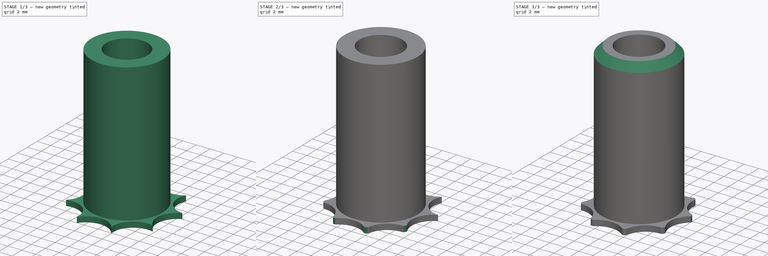
[diagram: build sequence overview — one tinted view per stage of 3, left to right]
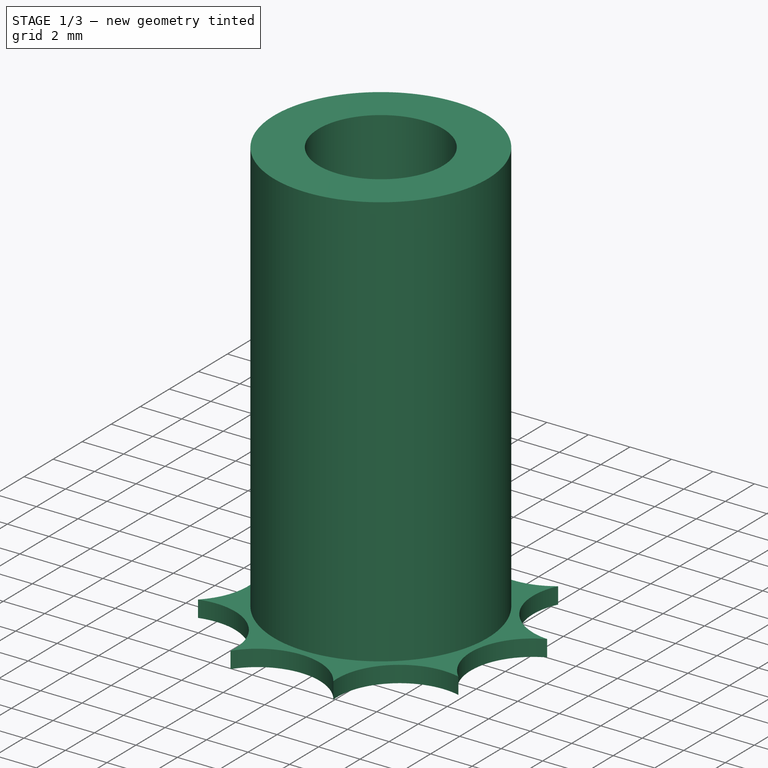
[diagram: stage 1 of 3 — iso view after this stage's code; geometry added in this stage tinted green]
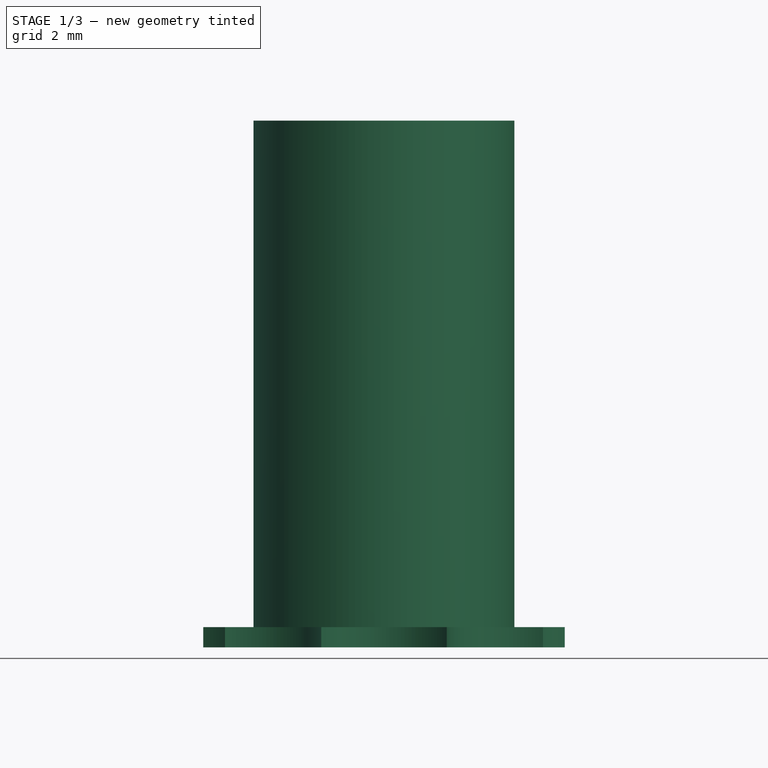
[diagram: stage 1 of 3 — front view after this stage's code; geometry added in this stage tinted green]
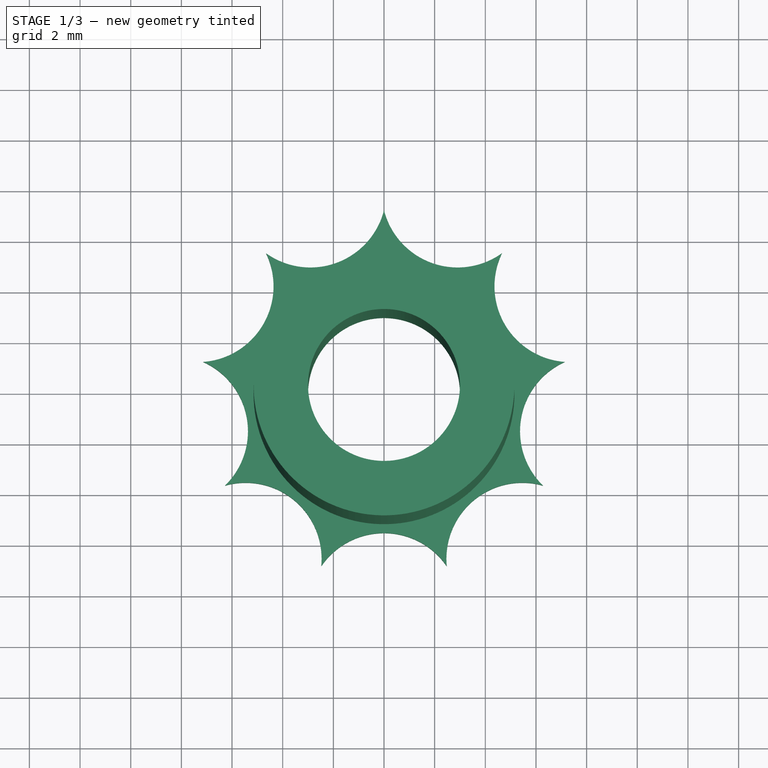
[diagram: stage 1 of 3 — top view after this stage's code; geometry added in this stage tinted green]
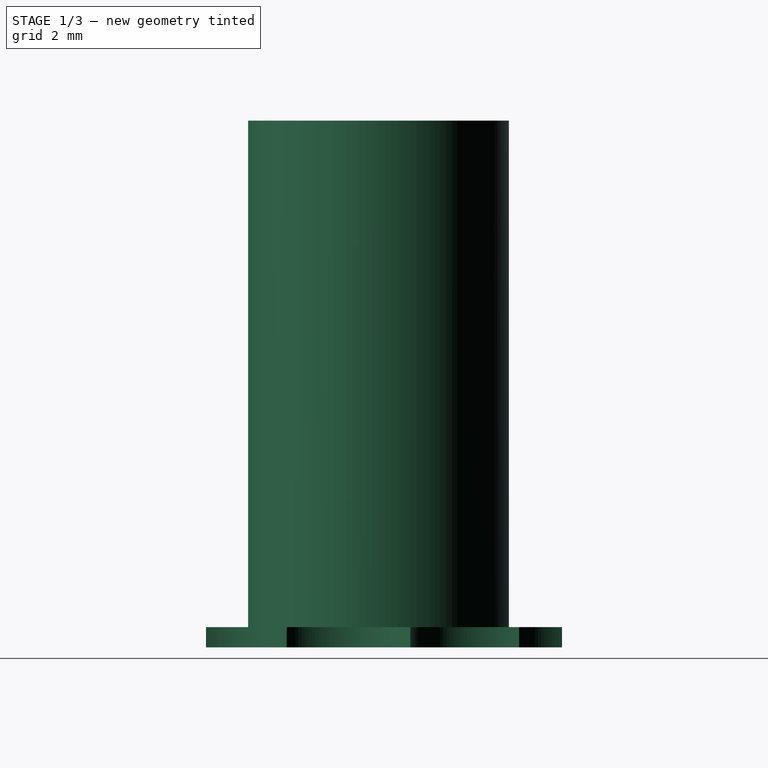
[diagram: stage 1 of 3 — right view after this stage's code; geometry added in this stage tinted green]
FCSTD DOCUMENT  (FreeCAD 0.19R24276 (Git))
Label: b_fix
License: All rights reserved
LicenseURL: http://en.wikipedia.org/wiki/All_rights_reserved
objects: PartDesign::Fillet×3, Sketcher::SketchObject×2, PartDesign::Pad×2, PartDesign::Chamfer×1, PartDesign::Body×1
note: 15 computed .brp shape members not serialized (recipe doc carries the construction recipe); baked Part::Feature solids carry a one-line shape summary decoded from their .brp

FEATURE [Sketcher::SketchObject] Sketch
  FullyConstrained = true
  MapMode = 5
  Support = -> [XY_Plane]
  sketch-geometry (2):
    g0: Circle CenterX=0 CenterY=0 CenterZ=0 NormalX=0 NormalY=0 NormalZ=1 AngleXU=0 Radius=5.15
    g1: Circle CenterX=0 CenterY=0 CenterZ=0 NormalX=0 NormalY=0 NormalZ=1 AngleXU=0 Radius=3
  constraints (4):
    c: Coincident(g0,g-1)
    c: Diameter(g0) = 10.3
    c: Coincident(g1,g0)
    c: Diameter(g1) = 6
FEATURE [PartDesign::Pad] Pad
  Direction = (1,1,1)
  Length = 20
  Length2 = 100
  Profile = -> Sketch
  Type = 0
FEATURE [Sketcher::SketchObject] Sketch001
  FullyConstrained = true
  MapMode = 5
  Placement = pos=(0,0,0) rot=(1,0,0;3.14159rad)
  Support = -> [Pad]
  sketch-geometry (31):
    g0: LineSegment StartX=0 StartY=8.5 StartZ=0 EndX=-5.46369 EndY=6.51138 EndZ=0
    g1: LineSegment StartX=-5.46369 StartY=6.51138 StartZ=0 EndX=-8.37087 EndY=1.47601 EndZ=0
    g2: LineSegment StartX=-8.37087 StartY=1.47601 StartZ=0 EndX=-7.36122 EndY=-4.25 EndZ=0
    g3: LineSegment StartX=-7.36122 StartY=-4.25 StartZ=0 EndX=-2.90717 EndY=-7.98739 EndZ=0
    g4: LineSegment StartX=-2.90717 StartY=-7.98739 StartZ=0 EndX=2.90717 EndY=-7.98739 EndZ=0
    g5: LineSegment StartX=2.90717 StartY=-7.98739 StartZ=0 EndX=7.36122 EndY=-4.25 EndZ=0
    g6: LineSegment StartX=7.36122 StartY=-4.25 StartZ=0 EndX=8.37087 EndY=1.47601 EndZ=0
    g7: LineSegment StartX=8.37087 StartY=1.47601 StartZ=0 EndX=5.46369 EndY=6.51138 EndZ=0
    g8: LineSegment StartX=5.46369 StartY=6.51138 StartZ=0 EndX=0 EndY=8.5 EndZ=0
    g9: Circle CenterX=0 CenterY=0 CenterZ=0 NormalX=0 NormalY=0 NormalZ=1 AngleXU=0 Radius=8.5
    g10: Circle CenterX=0 CenterY=0 CenterZ=0 NormalX=0 NormalY=0 NormalZ=1 AngleXU=0 Radius=3
    g11: LineSegment StartX=5.46369 StartY=6.51138 StartZ=0 EndX=-9e-16 EndY=0 EndZ=0
    g12: Circle CenterX=0 CenterY=0 CenterZ=0 NormalX=0 NormalY=0 NormalZ=1 AngleXU=0 Radius=11.5
    g13: ArcOfCircle CenterX=0 CenterY=8.5 CenterZ=0 NormalX=0 NormalY=0 NormalZ=1 AngleXU=0 Radius=3 StartAngle=5.93412 EndAngle=9.77384
    g14: ArcOfCircle CenterX=5.46369 CenterY=6.51138 CenterZ=0 NormalX=0 NormalY=0 NormalZ=1 AngleXU=0 Radius=3 StartAngle=3.04194 EndAngle=4.98657
    g15: ArcOfCircle CenterX=8.37087 CenterY=1.47601 CenterZ=0 NormalX=0 NormalY=0 NormalZ=1 AngleXU=0 Radius=3 StartAngle=2.34381 EndAngle=4.28844
    g16: ArcOfCircle CenterX=7.36122 CenterY=-4.25 CenterZ=0 NormalX=0 NormalY=0 NormalZ=1 AngleXU=0 Radius=3 StartAngle=1.64568 EndAngle=3.59031
    g17: ArcOfCircle CenterX=2.90717 CenterY=-7.98739 CenterZ=0 NormalX=0 NormalY=0 NormalZ=1 AngleXU=0 Radius=3 StartAngle=0.947546 EndAngle=2.89218
    g18: ArcOfCircle CenterX=-2.90717 CenterY=-7.98739 CenterZ=0 NormalX=0 NormalY=0 NormalZ=1 AngleXU=0 Radius=3 StartAngle=0.249415 EndAngle=2.19405
    g19: ArcOfCircle CenterX=-7.36122 CenterY=-4.25 CenterZ=0 NormalX=0 NormalY=0 NormalZ=1 AngleXU=0 Radius=3 StartAngle=5.83447 EndAngle=7.7791
    g20: ArcOfCircle CenterX=-8.37087 CenterY=1.47601 CenterZ=0 NormalX=0 NormalY=0 NormalZ=1 AngleXU=0 Radius=3 StartAngle=5.13634 EndAngle=7.08097
    g21: ArcOfCircle CenterX=-5.46369 CenterY=6.51138 CenterZ=0 NormalX=0 NormalY=0 NormalZ=1 AngleXU=0 Radius=3 StartAngle=4.4382 EndAngle=6.38284
    g22: ArcOfCircle CenterX=5.46369 CenterY=6.51138 CenterZ=0 NormalX=0 NormalY=0 NormalZ=1 AngleXU=0 Radius=3 StartAngle=5.23599 EndAngle=9.07571
    g23: ArcOfCircle CenterX=8.37087 CenterY=1.47601 CenterZ=0 NormalX=0 NormalY=0 NormalZ=1 AngleXU=0 Radius=3 StartAngle=4.53786 EndAngle=8.37758
    g24: ArcOfCircle CenterX=7.36122 CenterY=-4.25 CenterZ=0 NormalX=0 NormalY=0 NormalZ=1 AngleXU=0 Radius=3 StartAngle=3.83972 EndAngle=7.67945
    g25: ArcOfCircle CenterX=2.90717 CenterY=-7.98739 CenterZ=0 NormalX=0 NormalY=0 NormalZ=1 AngleXU=0 Radius=3 StartAngle=3.14159 EndAngle=6.98132
    g26: ArcOfCircle CenterX=-2.90717 CenterY=-7.98739 CenterZ=0 NormalX=0 NormalY=0 NormalZ=1 AngleXU=0 Radius=3 StartAngle=2.44346 EndAngle=6.28319
    g27: ArcOfCircle CenterX=-7.36122 CenterY=-4.25 CenterZ=0 NormalX=0 NormalY=0 NormalZ=1 AngleXU=0 Radius=3 StartAngle=1.74533 EndAngle=5.58505
    g28: ArcOfCircle CenterX=-8.37087 CenterY=1.47601 CenterZ=0 NormalX=0 NormalY=0 NormalZ=1 AngleXU=0 Radius=3 StartAngle=1.0472 EndAngle=4.88692
    g29: ArcOfCircle CenterX=0 CenterY=8.5 CenterZ=0 NormalX=0 NormalY=0 NormalZ=1 AngleXU=0 Radius=3 StartAngle=3.74007 EndAngle=5.6847
    g30: ArcOfCircle CenterX=-5.46369 CenterY=6.51138 CenterZ=0 NormalX=0 NormalY=0 NormalZ=1 AngleXU=0 Radius=3 StartAngle=0.349066 EndAngle=4.18879
  constraints (91):
    c: Coincident(g0,g1)
    c: Coincident(g1,g2)
    c: Coincident(g2,g3)
    c: Coincident(g3,g4)
    c: Coincident(g4,g5)
    c: Coincident(g5,g6)
    c: Coincident(g6,g7)
    c: Coincident(g7,g8)
    c: Coincident(g8,g0)
    c: Equal(g0, g1-g8) x8
    c: PointOnObject(g0,g9)
    c: PointOnObject(g1,g9)
    c: PointOnObject(g2,g9)
    c: PointOnObject(g3,g9)
    c: PointOnObject(g4,g9)
    c: PointOnObject(g5,g9)
    c: PointOnObject(g6,g9)
    c: PointOnObject(g7,g9)
    c: PointOnObject(g8,g9)
    c: Coincident(g9,g-1)
    c: PointOnObject(g8,g-2)
    c: Diameter(g9) = 17
    c: Coincident(g10,g-1)
    c: Diameter(g10) = 6
    c: Coincident(g11,g7)
    c: Coincident(g11,g-1)
    c: Coincident(g12,g-1)
    c: Diameter(g12) = 23
    c: Coincident(g13,g0)
    c: Diameter(g13) = 6
    c: Coincident(g14,g7)
    c: Equal(g13,g14)
    c: Coincident(g15,g6)
    c: Coincident(g16,g5)
    c: Coincident(g17,g4)
    c: Coincident(g18,g3)
    c: Coincident(g19,g2)
    c: Coincident(g20,g1)
    c: Coincident(g21,g0)
    c: Equal(g21,g13)
    c: Equal(g13,g20)
    c: Equal(g20,g19)
    c: Equal(g19,g18)
    c: Equal(g18,g17)
    c: Equal(g17,g16)
    c: Equal(g16,g15)
    c: PointOnObject(g13,g8)
    c: Coincident(g14,g29)
    c: PointOnObject(g22,g8)
    c: Equal(g14,g22)
    c: PointOnObject(g22,g7)
    c: Coincident(g14,g22)
    c: Coincident(g15,g14)
    c: PointOnObject(g23,g7)
    c: Equal(g15,g23)
    c: PointOnObject(g23,g6)
    c: Coincident(g15,g23)
    c: Coincident(g16,g15)
    c: PointOnObject(g24,g6)
    c: Equal(g16,g24)
    c: PointOnObject(g24,g5)
    c: Coincident(g16,g24)
    c: Coincident(g17,g16)
    c: PointOnObject(g25,g5)
    c: Equal(g17,g25)
    c: PointOnObject(g25,g4)
    c: Coincident(g17,g25)
    c: Coincident(g18,g17)
    c: PointOnObject(g26,g4)
    c: PointOnObject(g27,g3)
    c: Equal(g18,g26)
    c: Coincident(g18,g19)
    c: PointOnObject(g26,g3)
    c: Coincident(g18,g26)
    c: PointOnObject(g28,g2)
    c: Equal(g19,g27)
    c: Coincident(g19,g20)
    c: PointOnObject(g27,g2)
    c: Coincident(g19,g27)
    c: PointOnObject(g30,g1)
    c: Equal(g20,g28)
    c: Coincident(g20,g21)
    c: PointOnObject(g28,g1)
    c: Coincident(g20,g28)
    c: Equal(g13,g29)
    c: PointOnObject(g13,g0)
    c: Coincident(g13,g29)
    c: Equal(g21,g30)
    c: Coincident(g21,g29)
    c: PointOnObject(g30,g0)
    c: Coincident(g21,g30)
FEATURE [PartDesign::Pad] Pad001
  BaseFeature = -> Pad
  Direction = (1,1,1)
  Length = 0.8
  Length2 = 100
  Profile = -> Sketch001
  Type = 0
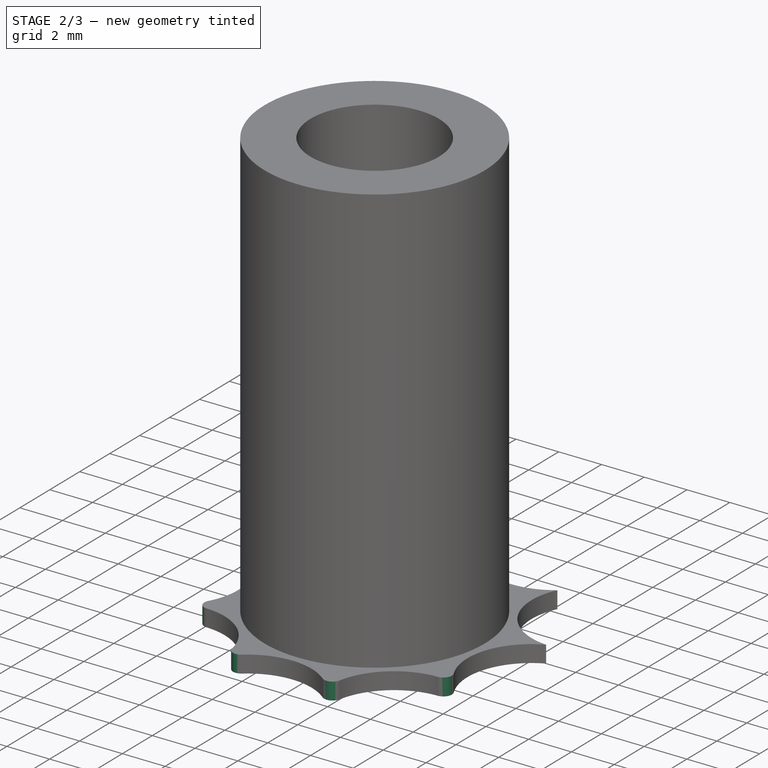
[diagram: stage 2 of 3 — iso view after this stage's code; geometry added in this stage tinted green]
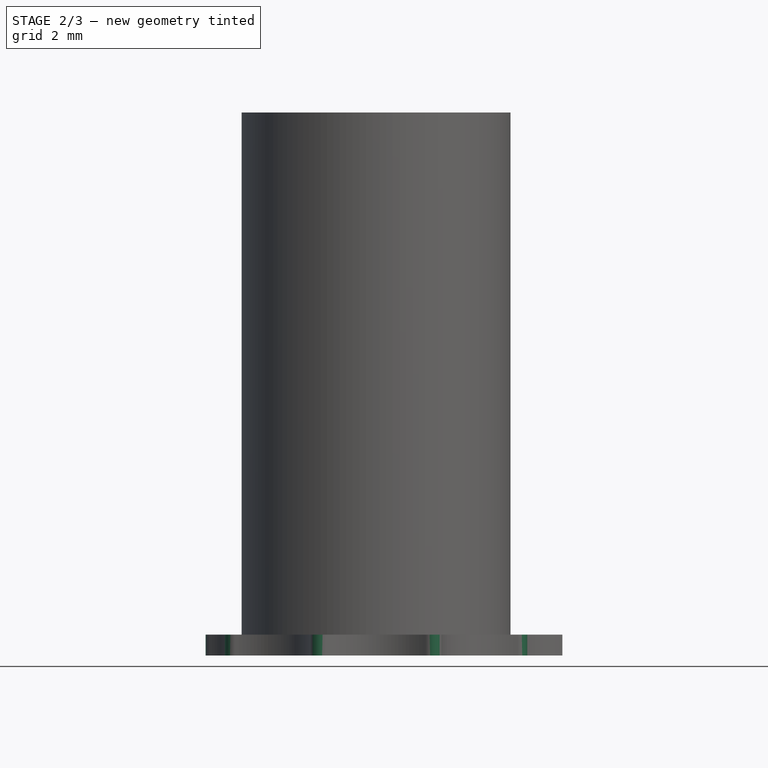
[diagram: stage 2 of 3 — front view after this stage's code; geometry added in this stage tinted green]
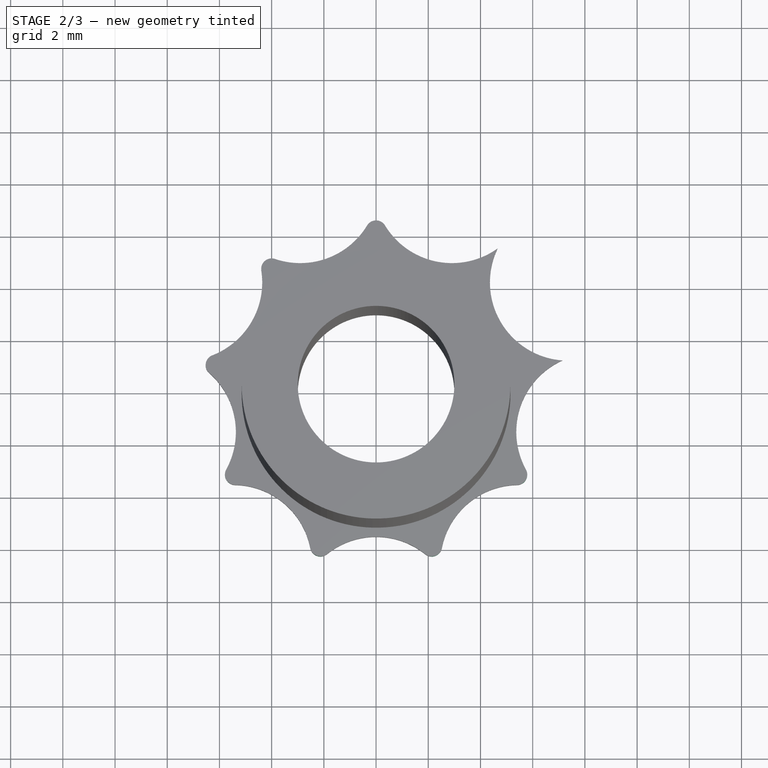
[diagram: stage 2 of 3 — top view after this stage's code; geometry added in this stage tinted green]
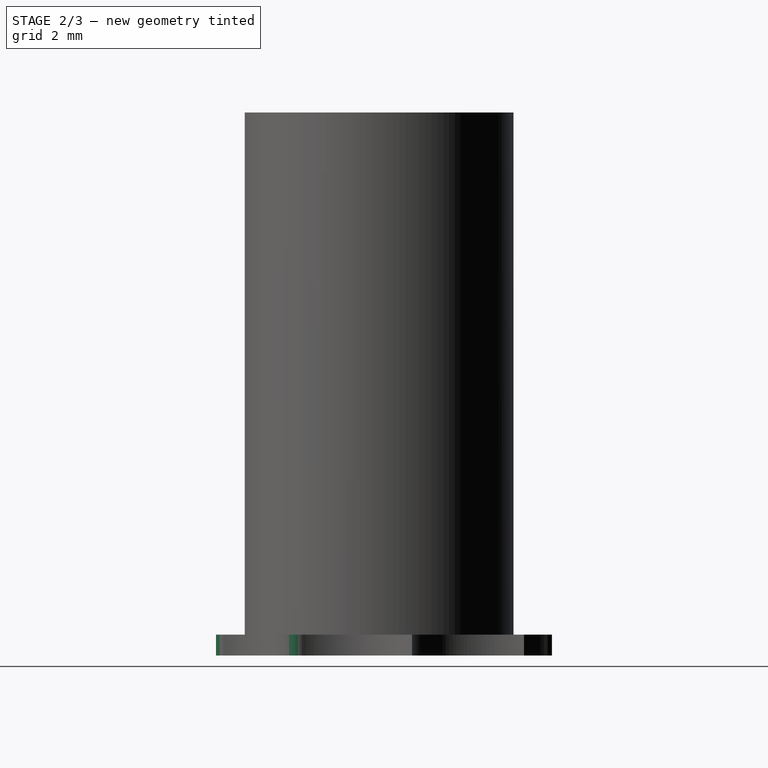
[diagram: stage 2 of 3 — right view after this stage's code; geometry added in this stage tinted green]
FEATURE [PartDesign::Fillet] Fillet
  Base = -> Pad001 [Edge17]
  BaseFeature = -> Pad001
  Radius = 0.4
  SupportTransform = false
FEATURE [PartDesign::Fillet] Fillet001
  Base = -> Fillet [Edge13,Edge17,Edge19,Edge23,Edge27,Edge29]
  BaseFeature = -> Fillet
  Radius = 0.4
  SupportTransform = false
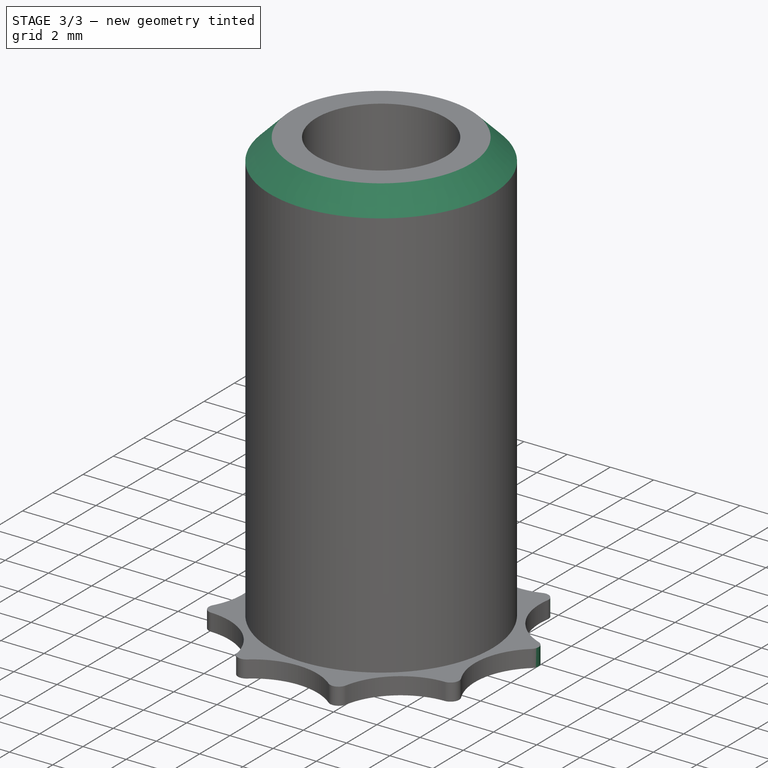
[diagram: stage 3 of 3 — iso view after this stage's code; geometry added in this stage tinted green]
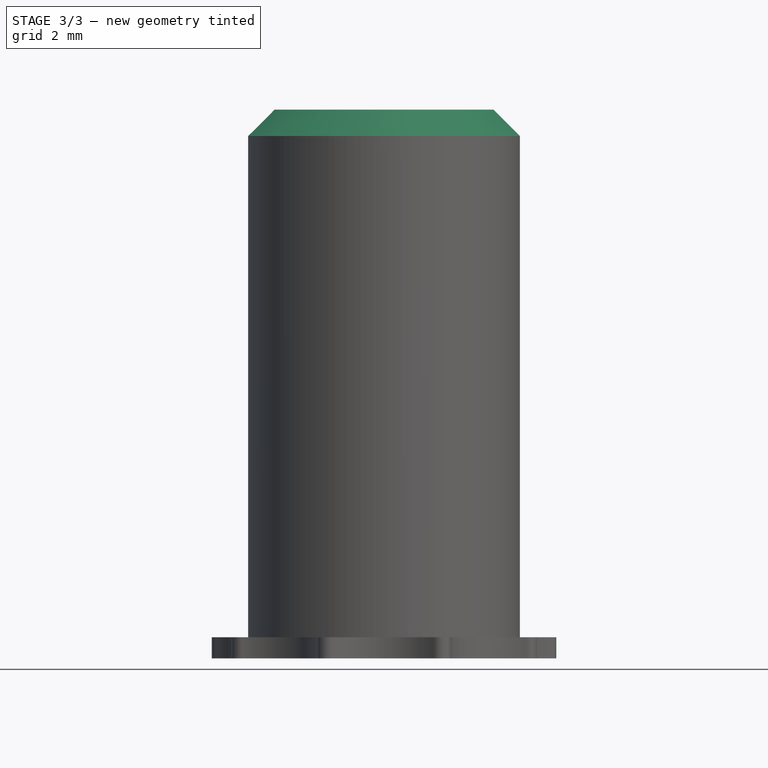
[diagram: stage 3 of 3 — front view after this stage's code; geometry added in this stage tinted green]
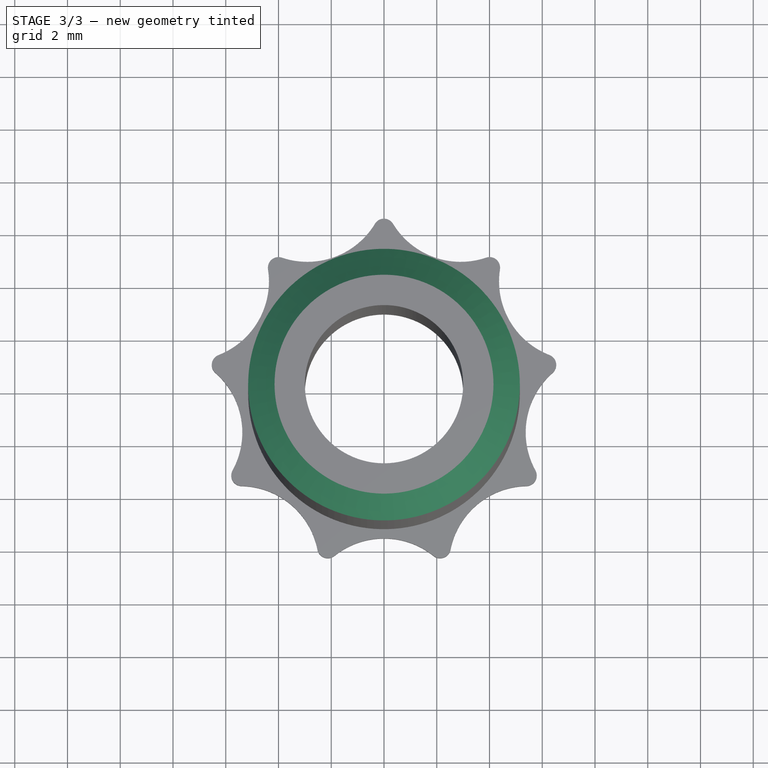
[diagram: stage 3 of 3 — top view after this stage's code; geometry added in this stage tinted green]
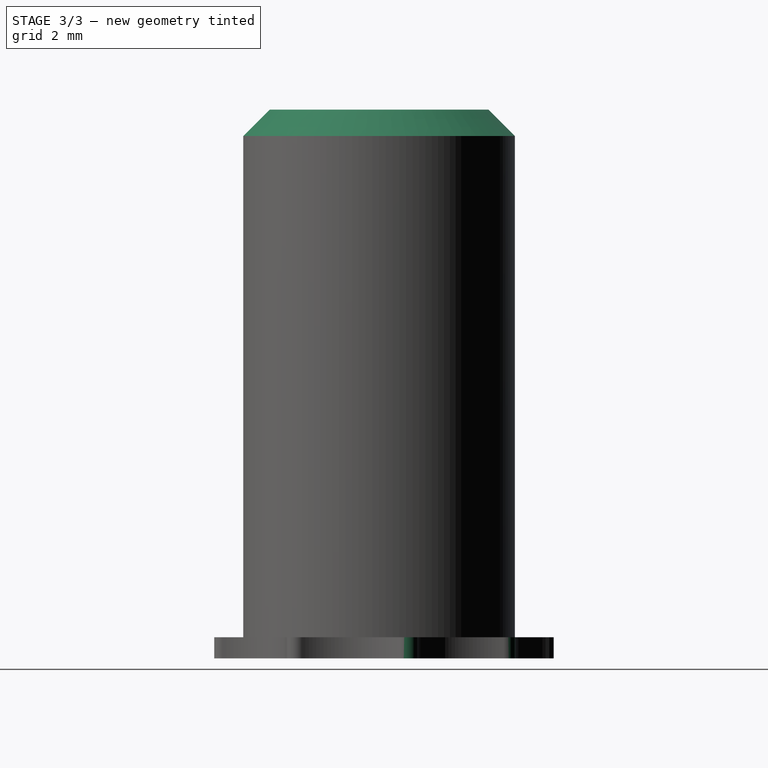
[diagram: stage 3 of 3 — right view after this stage's code; geometry added in this stage tinted green]
FEATURE [PartDesign::Fillet] Fillet002
  Base = -> Fillet001 [Edge37,Edge33]
  BaseFeature = -> Fillet001
  Radius = 0.4
  SupportTransform = false
FEATURE [PartDesign::Chamfer] Chamfer
  Angle = 45
  Base = -> Fillet002 [Edge57]
  BaseFeature = -> Fillet002
  ChamferType = 0
  FlipDirection = false
  Size = 1
  Size2 = 1
  SupportTransform = false
FEATURE [PartDesign::Body] Body
  Group = -> [Sketch,Pad,Sketch001,Pad001,Fillet,Fillet001,Fillet002,Chamfer]
  Origin = -> Origin
  Tip = -> Chamfer
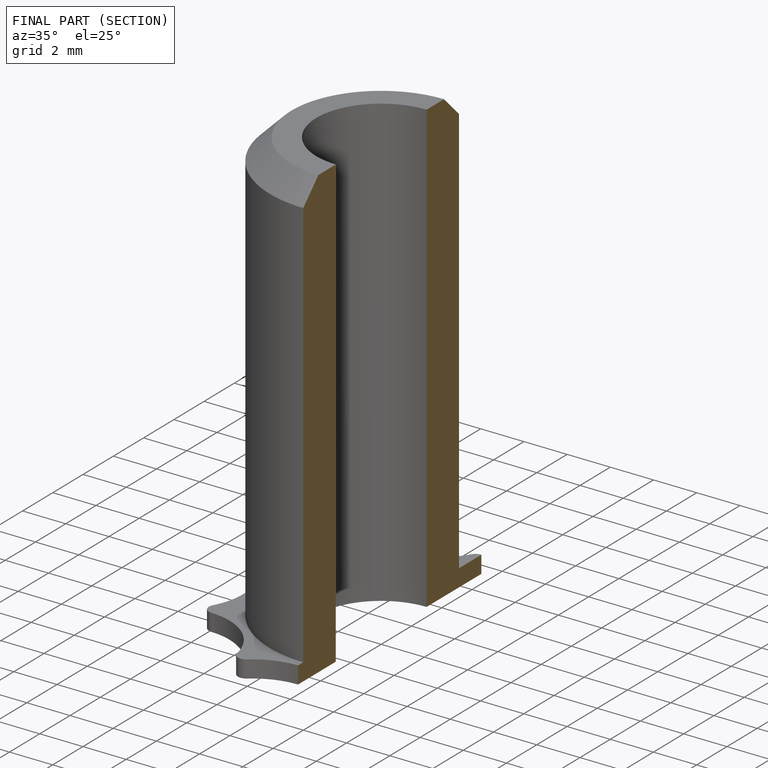
[diagram: finished part — half-section view (interior)]
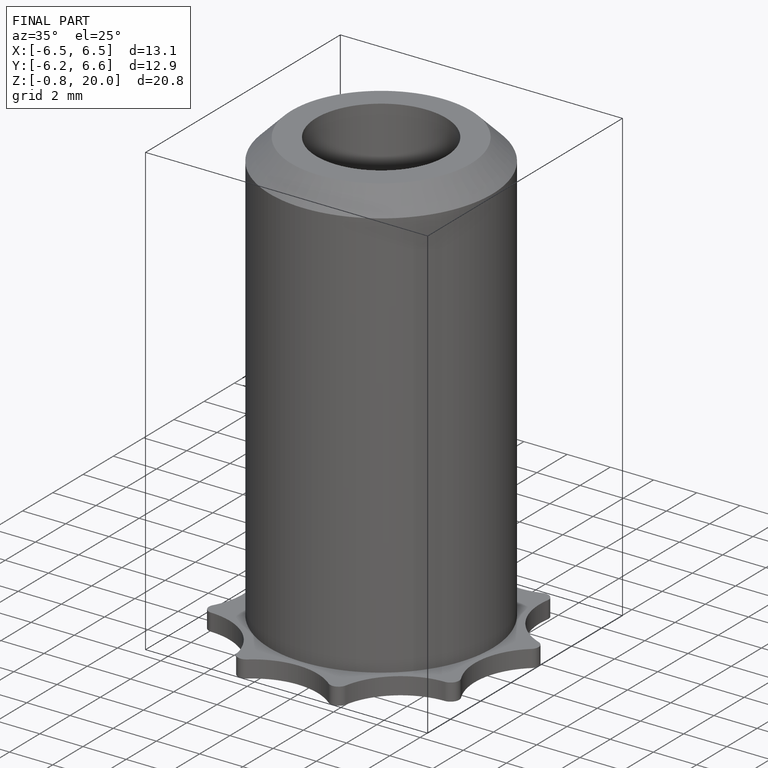
[diagram: finished part — iso view with bounding-box wireframe]
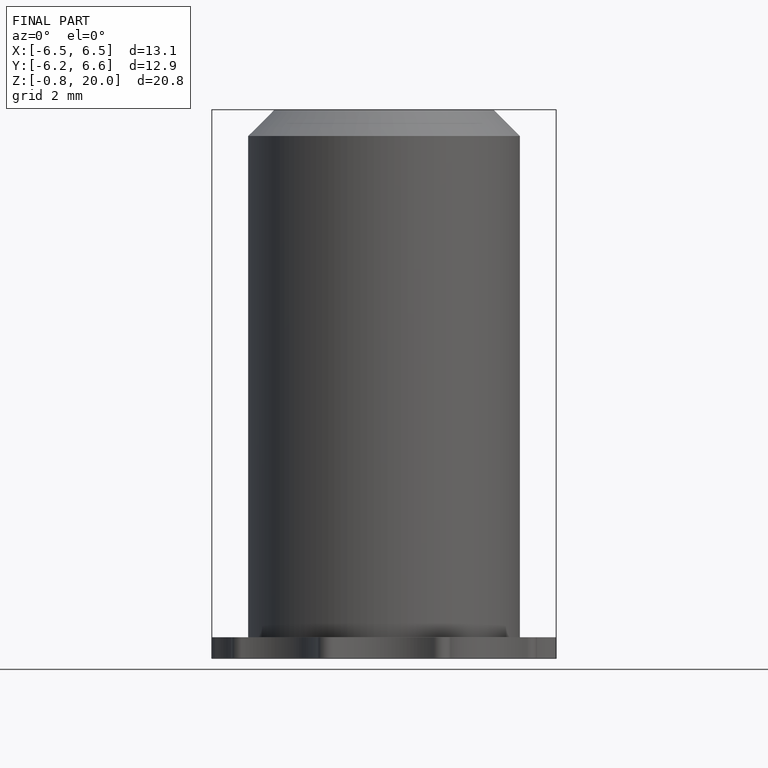
[diagram: finished part — front view with bounding-box wireframe]
